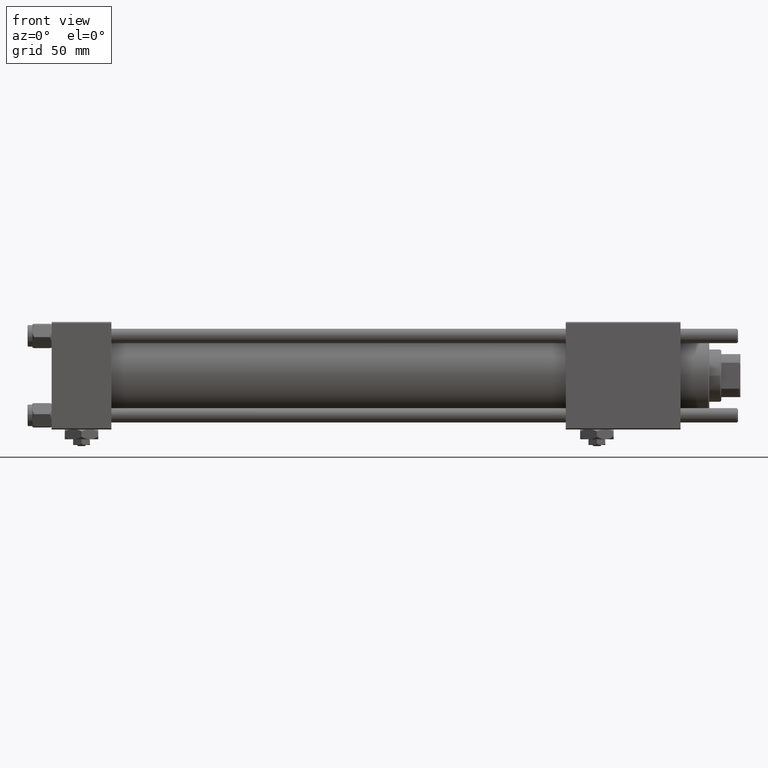
[diagram: clean part render]
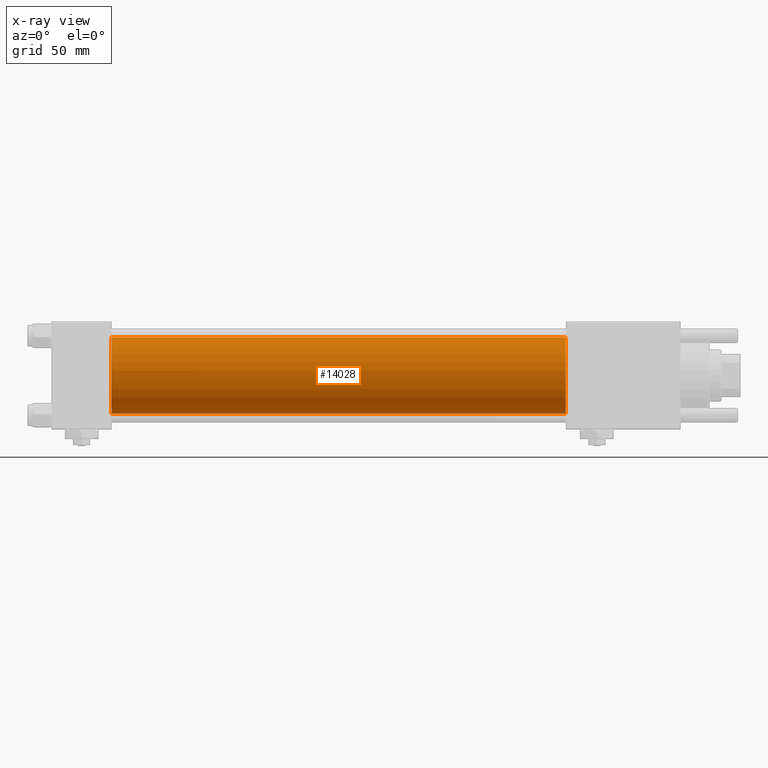
[diagram: x-ray — body ghosted, one internal face saturated and labeled with its STEP entity id]
A machine part, front view, then the same camera in x-ray: the body is ghosted and one INTERNAL B-rep face — a face not visible from any outside direction — is saturated and labeled: STEP entity #14028.
In plain terms, the highlighted cylindrical surface (partial cylindrical patch) has radius 16 mm, axis along (-1, -0, -0).
Its self-contained STEP definition (entity closure, byte-faithful):
#662 = DIRECTION ( 'NONE',  ( 0.000000000000000000, 0.000000000000000000, -1.000000000000000000 ) ) ;
#1054 = VERTEX_POINT ( 'NONE', #32298 ) ;
#4173 = DIRECTION ( 'NONE',  ( -1.000000000000000000, -0.000000000000000000, -0.000000000000000000 ) ) ;
#4673 = EDGE_CURVE ( 'NONE', #30654, #14037, #58329, .T. ) ;
#5735 = EDGE_CURVE ( 'NONE', #30654, #6109, #44761, .T. ) ;
#6109 = VERTEX_POINT ( 'NONE', #54958 ) ;
#6602 = ORIENTED_EDGE ( 'NONE', *, *, #16930, .F. ) ;
#6911 = LINE ( 'NONE', #19430, #41110 ) ;
#11487 = DIRECTION ( 'NONE',  ( 1.000000000000000000, 0.000000000000000000, 0.000000000000000000 ) ) ;
#12372 = DIRECTION ( 'NONE',  ( -1.000000000000000000, -0.000000000000000000, -0.000000000000000000 ) ) ;
#13234 = ORIENTED_EDGE ( 'NONE', *, *, #5735, .T. ) ;
#14028 = ADVANCED_FACE ( 'NONE', ( #40898 ), #48660, .F. ) ;
#14037 = VERTEX_POINT ( 'NONE', #41488 ) ;
#15918 = ORIENTED_EDGE ( 'NONE', *, *, #4673, .F. ) ;
#16563 = DIRECTION ( 'NONE',  ( 0.000000000000000000, 0.000000000000000000, -1.000000000000000000 ) ) ;
#16930 = EDGE_CURVE ( 'NONE', #14037, #1054, #32822, .T. ) ;
#19102 = AXIS2_PLACEMENT_3D ( 'NONE', #49201, #53949, #662 ) ;
#19430 = CARTESIAN_POINT ( 'NONE',  ( 215.0000000000000000, -6.426503353294456087E-16, -16.00000000000000000 ) ) ;
#22270 = AXIS2_PLACEMENT_3D ( 'NONE', #36160, #12372, #57883 ) ;
#30654 = VERTEX_POINT ( 'NONE', #32302 ) ;
#32298 = CARTESIAN_POINT ( 'NONE',  ( 25.00000000000000000, -6.426503353294456087E-16, -16.00000000000000000 ) ) ;
#32302 = CARTESIAN_POINT ( 'NONE',  ( 215.0000000000000000, -2.602085213965210642E-15, 16.00000000000000000 ) ) ;
#32398 = VECTOR ( 'NONE', #4173, 1000.000000000000000 ) ;
#32822 = CIRCLE ( 'NONE', #49934, 16.00000000000000000 ) ;
#36160 = CARTESIAN_POINT ( 'NONE',  ( 215.0000000000000000, -2.602085213965210642E-15, 0.000000000000000000 ) ) ;
#39181 = CARTESIAN_POINT ( 'NONE',  ( 25.00000000000000000, -2.602085213965210642E-15, 0.000000000000000000 ) ) ;
#39615 = CARTESIAN_POINT ( 'NONE',  ( 215.0000000000000000, -2.602085213965210642E-15, 16.00000000000000000 ) ) ;
#40898 = FACE_OUTER_BOUND ( 'NONE', #46588, .T. ) ;
#41110 = VECTOR ( 'NONE', #56597, 1000.000000000000000 ) ;
#41488 = CARTESIAN_POINT ( 'NONE',  ( 25.00000000000000000, -2.602085213965210642E-15, 16.00000000000000000 ) ) ;
#44761 = CIRCLE ( 'NONE', #19102, 16.00000000000000000 ) ;
#44987 = EDGE_CURVE ( 'NONE', #6109, #1054, #6911, .T. ) ;
#46588 = EDGE_LOOP ( 'NONE', ( #13234, #55922, #6602, #15918 ) ) ;
#48660 = CYLINDRICAL_SURFACE ( 'NONE', #22270, 16.00000000000000000 ) ;
#49201 = CARTESIAN_POINT ( 'NONE',  ( 215.0000000000000000, -2.602085213965210642E-15, 0.000000000000000000 ) ) ;
#49934 = AXIS2_PLACEMENT_3D ( 'NONE', #39181, #11487, #16563 ) ;
#53949 = DIRECTION ( 'NONE',  ( 1.000000000000000000, 0.000000000000000000, 0.000000000000000000 ) ) ;
#54958 = CARTESIAN_POINT ( 'NONE',  ( 215.0000000000000000, -6.426503353294456087E-16, -16.00000000000000000 ) ) ;
#55922 = ORIENTED_EDGE ( 'NONE', *, *, #44987, .T. ) ;
#56597 = DIRECTION ( 'NONE',  ( -1.000000000000000000, -0.000000000000000000, -0.000000000000000000 ) ) ;
#57883 = DIRECTION ( 'NONE',  ( 0.000000000000000000, 0.000000000000000000, 1.000000000000000000 ) ) ;
#58329 = LINE ( 'NONE', #39615, #32398 ) ;